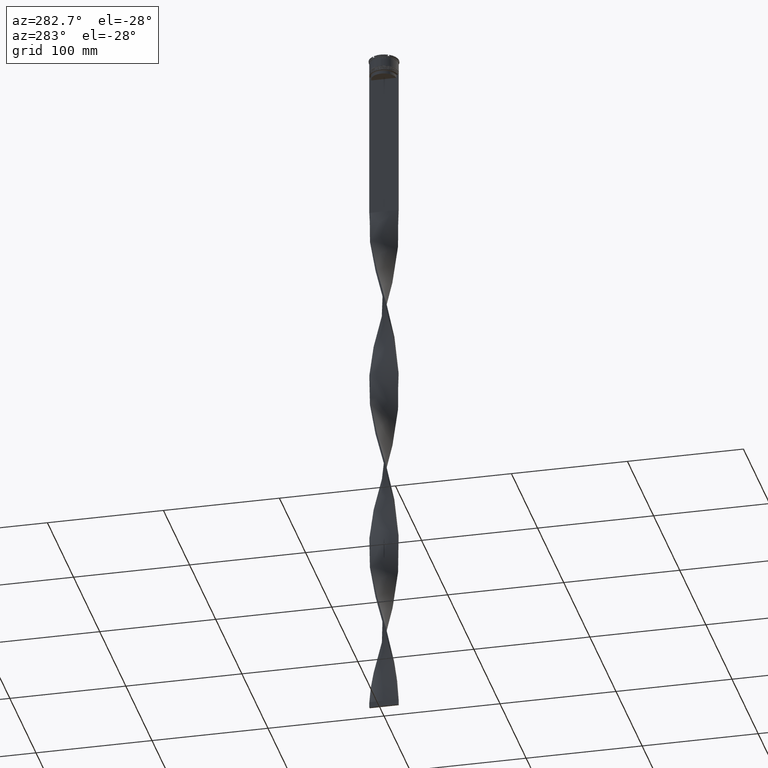
[diagram: clean part render]
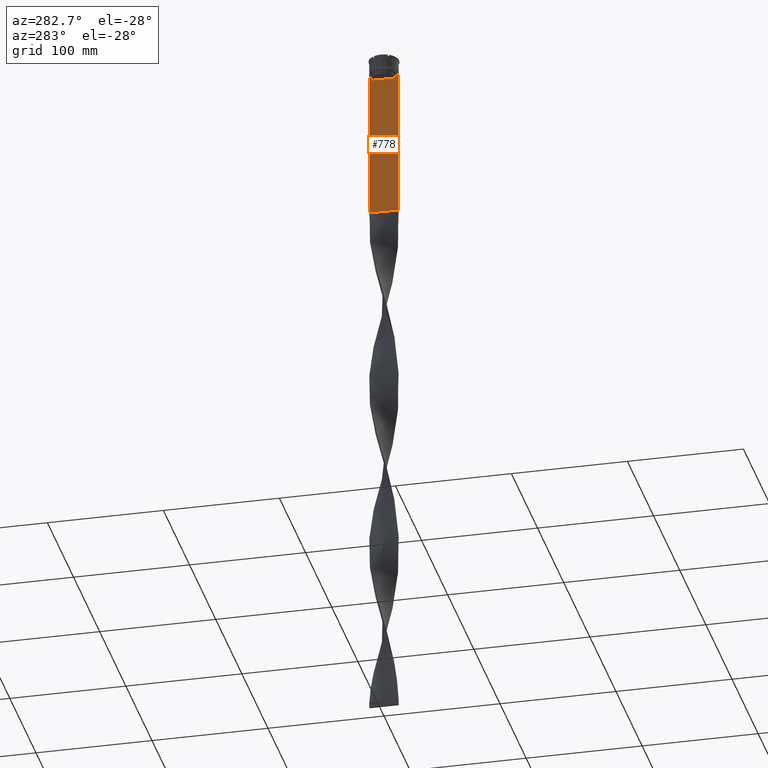
[diagram: same view with one face highlighted and labeled with its STEP entity id]
A machine part, auxiliary view. The second image highlights one B-rep face of the part: STEP entity #778.
In plain terms, the highlighted planar face has unit normal (-1, 0, 0).
Its self-contained STEP definition (entity closure, byte-faithful):
#29 = CARTESIAN_POINT ( 'NONE',  ( -0.7499999999999997780, 11.37530219378809093, -14.00000000000000178 ) ) ;
#94 = VERTEX_POINT ( 'NONE', #842 ) ;
#104 = CARTESIAN_POINT ( 'NONE',  ( -0.7499999999999997780, -12.50000000000000000, -14.00000000000000178 ) ) ;
#187 = CARTESIAN_POINT ( 'NONE',  ( -0.7499999999999997780, -11.20826532207830439, -14.16667499063191471 ) ) ;
#237 = EDGE_LOOP ( 'NONE', ( #3319, #4710, #3303, #1682, #2023, #2345, #2137, #4727, #4546, #2000, #2518, #3542 ) ) ;
#250 = DIRECTION ( 'NONE',  ( 0.000000000000000000, 0.000000000000000000, -1.000000000000000000 ) ) ;
#261 = DIRECTION ( 'NONE',  ( 0.000000000000000000, 0.000000000000000000, -1.000000000000000000 ) ) ;
#344 = EDGE_CURVE ( 'NONE', #567, #1190, #2620, .T. ) ;
#402 = B_SPLINE_CURVE_WITH_KNOTS ( 'NONE', 3,
 ( #29, #2316, #2634, #486 ),
 .UNSPECIFIED., .F., .F.,
 ( 4, 4 ),
 ( 0.01936090553552769281, 0.02006881572333104116 ),
 .UNSPECIFIED. ) ;
#470 = FACE_OUTER_BOUND ( 'NONE', #237, .T. ) ;
#486 = CARTESIAN_POINT ( 'NONE',  ( -0.7499999999999997780, 10.87416663473574374, -14.50000000000000000 ) ) ;
#553 = LINE ( 'NONE', #2772, #4510 ) ;
#557 = DIRECTION ( 'NONE',  ( 0.000000000000000000, -1.000000000000000000, 0.000000000000000000 ) ) ;
#567 = VERTEX_POINT ( 'NONE', #4189 ) ;
#657 = VERTEX_POINT ( 'NONE', #1221 ) ;
#666 = CARTESIAN_POINT ( 'NONE',  ( -0.7499999999999997780, 12.50000000000000000, -14.00000000000000178 ) ) ;
#711 = LINE ( 'NONE', #3670, #1922 ) ;
#717 = CARTESIAN_POINT ( 'NONE',  ( -0.7499999999999997780, -12.37729776647553059, -14.00000000000000178 ) ) ;
#778 = ADVANCED_FACE ( 'NONE', ( #470 ), #1955, .T. ) ;
#842 = CARTESIAN_POINT ( 'NONE',  ( -0.7499999999999997780, -10.87416663473574374, -14.50000000000000000 ) ) ;
#893 = VERTEX_POINT ( 'NONE', #3257 ) ;
#1015 = LINE ( 'NONE', #1325, #3268 ) ;
#1068 = CARTESIAN_POINT ( 'NONE',  ( -0.7499999999999997780, 11.37530219378809093, -14.00000000000000178 ) ) ;
#1190 = VERTEX_POINT ( 'NONE', #717 ) ;
#1221 = CARTESIAN_POINT ( 'NONE',  ( -0.7499999999999997780, 10.87416663473574374, -14.50000000000000000 ) ) ;
#1325 = CARTESIAN_POINT ( 'NONE',  ( -0.7499999999999997780, -12.50000000000000000, -14.00000000000000178 ) ) ;
#1330 = EDGE_CURVE ( 'NONE', #893, #94, #553, .T. ) ;
#1447 = LINE ( 'NONE', #4792, #2397 ) ;
#1458 = B_SPLINE_CURVE_WITH_KNOTS ( 'NONE', 3,
 ( #2058, #3559, #187, #1685 ),
 .UNSPECIFIED., .F., .F.,
 ( 4, 4 ),
 ( 0.05009718908159448147, 0.05081156920313960323 ),
 .UNSPECIFIED. ) ;
#1538 = VECTOR ( 'NONE', #3590, 1000.000000000000000 ) ;
#1555 = CARTESIAN_POINT ( 'NONE',  ( -0.7499999999999997780, -12.50000000000000000, -143.0000000000000284 ) ) ;
#1556 = VERTEX_POINT ( 'NONE', #1068 ) ;
#1558 = DIRECTION ( 'NONE',  ( 0.000000000000000000, -1.000000000000000000, 0.000000000000000000 ) ) ;
#1576 = VERTEX_POINT ( 'NONE', #2142 ) ;
#1673 = EDGE_CURVE ( 'NONE', #3841, #4646, #1447, .T. ) ;
#1682 = ORIENTED_EDGE ( 'NONE', *, *, #1673, .T. ) ;
#1685 = CARTESIAN_POINT ( 'NONE',  ( -0.7499999999999997780, -11.37530219378809093, -14.00000000000000178 ) ) ;
#1922 = VECTOR ( 'NONE', #261, 1000.000000000000000 ) ;
#1932 = DIRECTION ( 'NONE',  ( 0.000000000000000000, -1.000000000000000000, 0.000000000000000000 ) ) ;
#1955 = PLANE ( 'NONE',  #1991 ) ;
#1971 = CARTESIAN_POINT ( 'NONE',  ( -0.7499999999999997780, -12.50000000000000000, -14.00000000000000178 ) ) ;
#1977 = CARTESIAN_POINT ( 'NONE',  ( -0.7499999999999997780, -12.50000000000000000, 11.04495957273638673 ) ) ;
#1991 = AXIS2_PLACEMENT_3D ( 'NONE', #1977, #3109, #3185 ) ;
#2000 = ORIENTED_EDGE ( 'NONE', *, *, #1330, .F. ) ;
#2023 = ORIENTED_EDGE ( 'NONE', *, *, #3021, .F. ) ;
#2058 = CARTESIAN_POINT ( 'NONE',  ( -0.7499999999999997780, -10.87416663473574374, -14.50000000000000000 ) ) ;
#2090 = CARTESIAN_POINT ( 'NONE',  ( -0.7499999999999997780, -12.50000000000000000, -143.0000000000000284 ) ) ;
#2115 = LINE ( 'NONE', #3614, #4523 ) ;
#2137 = ORIENTED_EDGE ( 'NONE', *, *, #2911, .F. ) ;
#2142 = CARTESIAN_POINT ( 'NONE',  ( -0.7499999999999997780, 10.87416663473574019, -17.00000000000000000 ) ) ;
#2188 = DIRECTION ( 'NONE',  ( 0.000000000000000000, -1.000000000000000000, 0.000000000000000000 ) ) ;
#2275 = EDGE_CURVE ( 'NONE', #1556, #657, #402, .T. ) ;
#2316 = CARTESIAN_POINT ( 'NONE',  ( -0.7499999999999997780, 11.20826531587977648, -14.16667499681701514 ) ) ;
#2345 = ORIENTED_EDGE ( 'NONE', *, *, #2562, .F. ) ;
#2397 = VECTOR ( 'NONE', #4427, 1000.000000000000000 ) ;
#2478 = LINE ( 'NONE', #4034, #2484 ) ;
#2484 = VECTOR ( 'NONE', #4692, 1000.000000000000000 ) ;
#2518 = ORIENTED_EDGE ( 'NONE', *, *, #2856, .F. ) ;
#2562 = EDGE_CURVE ( 'NONE', #3949, #4639, #711, .T. ) ;
#2620 = LINE ( 'NONE', #4124, #3325 ) ;
#2634 = CARTESIAN_POINT ( 'NONE',  ( -0.7499999999999997780, 11.04122051153452055, -14.33334204648729582 ) ) ;
#2679 = LINE ( 'NONE', #1971, #3747 ) ;
#2772 = CARTESIAN_POINT ( 'NONE',  ( -0.7499999999999997780, -10.87416663473574374, 0.000000000000000000 ) ) ;
#2856 = EDGE_CURVE ( 'NONE', #1576, #893, #2478, .T. ) ;
#2911 = EDGE_CURVE ( 'NONE', #1190, #3949, #1015, .T. ) ;
#3021 = EDGE_CURVE ( 'NONE', #4639, #4646, #3986, .T. ) ;
#3050 = EDGE_CURVE ( 'NONE', #657, #1576, #2115, .T. ) ;
#3052 = DIRECTION ( 'NONE',  ( -0.000000000000000000, -0.000000000000000000, 1.000000000000000000 ) ) ;
#3109 = DIRECTION ( 'NONE',  ( -1.000000000000000000, 0.000000000000000000, 0.000000000000000000 ) ) ;
#3185 = DIRECTION ( 'NONE',  ( 0.000000000000000000, 0.000000000000000000, 1.000000000000000000 ) ) ;
#3257 = CARTESIAN_POINT ( 'NONE',  ( -0.7499999999999997780, -10.87416663473574019, -17.00000000000000000 ) ) ;
#3268 = VECTOR ( 'NONE', #2188, 1000.000000000000000 ) ;
#3303 = ORIENTED_EDGE ( 'NONE', *, *, #4237, .F. ) ;
#3319 = ORIENTED_EDGE ( 'NONE', *, *, #2275, .F. ) ;
#3325 = VECTOR ( 'NONE', #1932, 1000.000000000000000 ) ;
#3525 = CARTESIAN_POINT ( 'NONE',  ( -0.7499999999999997780, -12.50000000000000000, -14.00000000000000178 ) ) ;
#3542 = ORIENTED_EDGE ( 'NONE', *, *, #3050, .F. ) ;
#3559 = CARTESIAN_POINT ( 'NONE',  ( -0.7499999999999997780, -11.04122051801870619, -14.33334204001847745 ) ) ;
#3590 = DIRECTION ( 'NONE',  ( 0.000000000000000000, 1.000000000000000000, 0.000000000000000000 ) ) ;
#3614 = CARTESIAN_POINT ( 'NONE',  ( -0.7499999999999997780, 10.87416663473574374, 0.000000000000000000 ) ) ;
#3670 = CARTESIAN_POINT ( 'NONE',  ( -0.7499999999999997780, -12.50000000000000000, 11.04495957273638673 ) ) ;
#3671 = VECTOR ( 'NONE', #557, 1000.000000000000000 ) ;
#3715 = EDGE_CURVE ( 'NONE', #94, #567, #1458, .T. ) ;
#3747 = VECTOR ( 'NONE', #1558, 1000.000000000000000 ) ;
#3841 = VERTEX_POINT ( 'NONE', #666 ) ;
#3949 = VERTEX_POINT ( 'NONE', #104 ) ;
#3986 = LINE ( 'NONE', #2090, #1538 ) ;
#4008 = VERTEX_POINT ( 'NONE', #4210 ) ;
#4026 = EDGE_CURVE ( 'NONE', #4008, #1556, #2679, .T. ) ;
#4034 = CARTESIAN_POINT ( 'NONE',  ( -0.7499999999999997780, 10.90000000000000213, -17.00000000000000000 ) ) ;
#4124 = CARTESIAN_POINT ( 'NONE',  ( -0.7499999999999997780, -12.50000000000000000, -14.00000000000000178 ) ) ;
#4136 = CARTESIAN_POINT ( 'NONE',  ( -0.7499999999999997780, 12.50000000000000000, -143.0000000000000284 ) ) ;
#4189 = CARTESIAN_POINT ( 'NONE',  ( -0.7499999999999997780, -11.37530219378809093, -14.00000000000000178 ) ) ;
#4210 = CARTESIAN_POINT ( 'NONE',  ( -0.7499999999999997780, 12.37729776647553059, -14.00000000000000178 ) ) ;
#4237 = EDGE_CURVE ( 'NONE', #3841, #4008, #4259, .T. ) ;
#4259 = LINE ( 'NONE', #3525, #3671 ) ;
#4427 = DIRECTION ( 'NONE',  ( 0.000000000000000000, 0.000000000000000000, -1.000000000000000000 ) ) ;
#4510 = VECTOR ( 'NONE', #3052, 1000.000000000000000 ) ;
#4523 = VECTOR ( 'NONE', #250, 1000.000000000000000 ) ;
#4546 = ORIENTED_EDGE ( 'NONE', *, *, #3715, .F. ) ;
#4639 = VERTEX_POINT ( 'NONE', #1555 ) ;
#4646 = VERTEX_POINT ( 'NONE', #4136 ) ;
#4692 = DIRECTION ( 'NONE',  ( 0.000000000000000000, -1.000000000000000000, 0.000000000000000000 ) ) ;
#4710 = ORIENTED_EDGE ( 'NONE', *, *, #4026, .F. ) ;
#4727 = ORIENTED_EDGE ( 'NONE', *, *, #344, .F. ) ;
#4792 = CARTESIAN_POINT ( 'NONE',  ( -0.7499999999999997780, 12.50000000000000000, 11.04495957273638673 ) ) ;